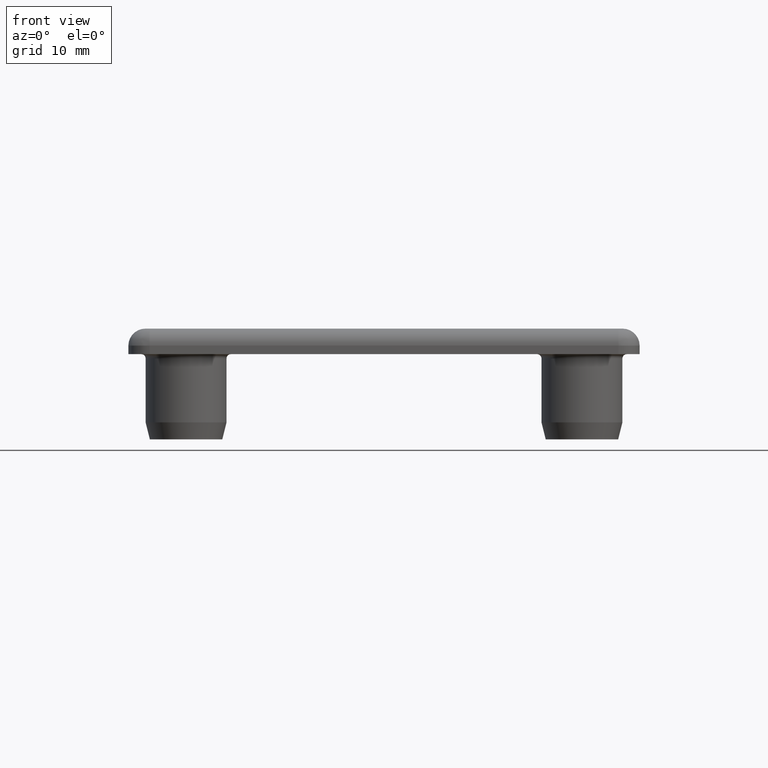
[diagram: clean part render]
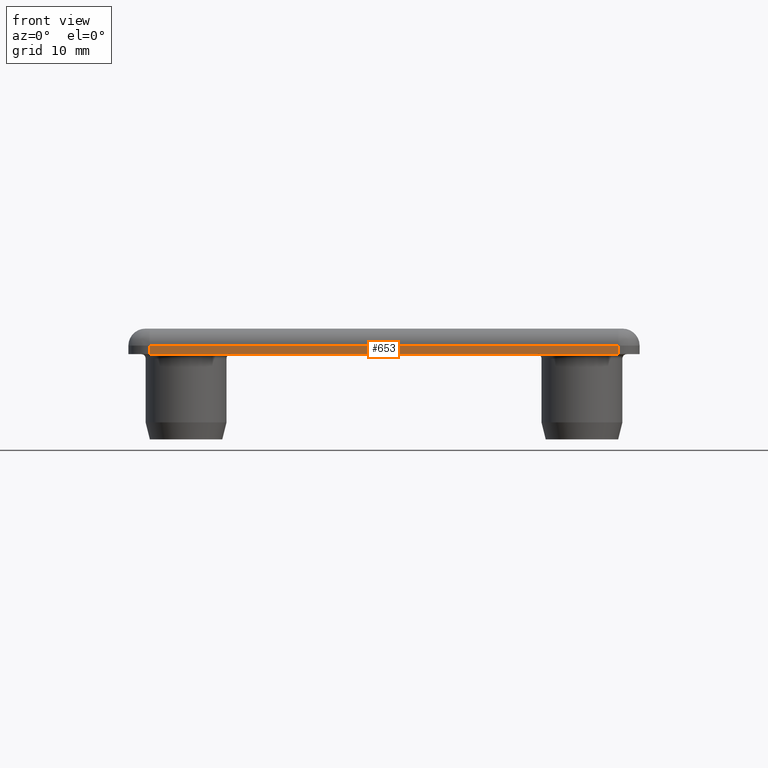
[diagram: same view with one face highlighted and labeled with its STEP entity id]
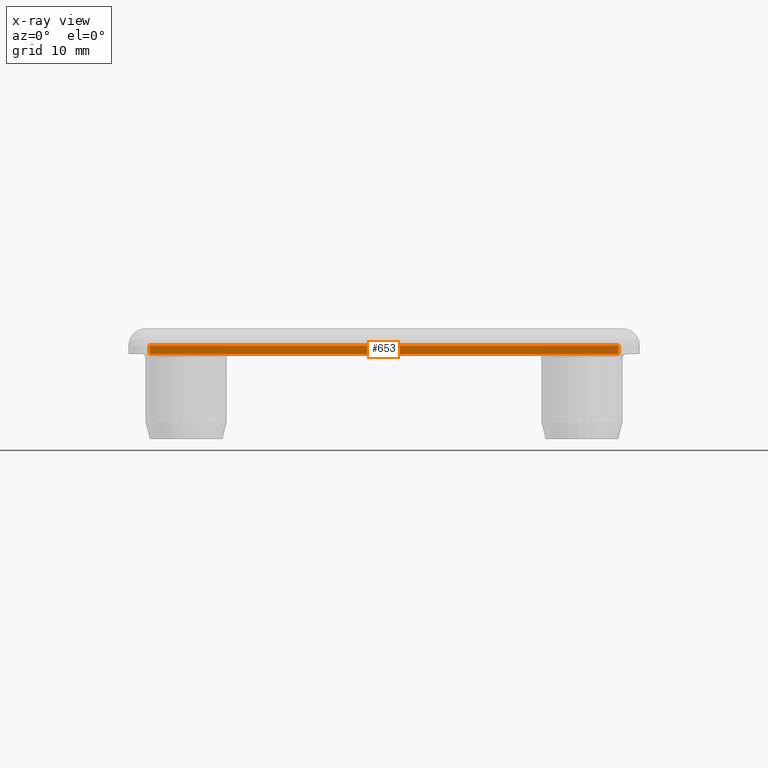
[diagram: x-ray of the same camera — body ghosted, the highlighted face saturated]
A machine part, front view. The second image highlights one B-rep face of the part: STEP entity #653.
The next image is the same camera in x-ray: the body ghosted, the highlighted face saturated — about 0% of this face is hidden behind the body in this view.
In plain terms, the highlighted planar face has unit normal (0, 1, 0).
Its self-contained STEP definition (entity closure, byte-faithful):
#20=LINE('',#1139,#40);
#27=LINE('',#1160,#47);
#28=LINE('',#1163,#48);
#29=LINE('',#1164,#49);
#40=VECTOR('',#920,55.);
#47=VECTOR('',#941,1.);
#48=VECTOR('',#944,55.);
#49=VECTOR('',#945,1.);
#61=PLANE('',#751);
#149=FACE_OUTER_BOUND('',#219,.T.);
#219=EDGE_LOOP('',(#533,#534,#535,#536));
#352=VERTEX_POINT('',#1136);
#353=VERTEX_POINT('',#1138);
#360=VERTEX_POINT('',#1158);
#361=VERTEX_POINT('',#1162);
#416=EDGE_CURVE('',#352,#353,#20,.T.);
#427=EDGE_CURVE('',#352,#360,#27,.T.);
#428=EDGE_CURVE('',#360,#361,#28,.T.);
#429=EDGE_CURVE('',#353,#361,#29,.T.);
#533=ORIENTED_EDGE('',*,*,#427,.T.);
#534=ORIENTED_EDGE('',*,*,#428,.T.);
#535=ORIENTED_EDGE('',*,*,#429,.F.);
#536=ORIENTED_EDGE('',*,*,#416,.F.);
#653=ADVANCED_FACE('',(#149),#61,.F.);
#751=AXIS2_PLACEMENT_3D('',#1161,#942,#943);
#920=DIRECTION('',(-1.,0.,0.));
#941=DIRECTION('',(0.,0.,1.));
#942=DIRECTION('center_axis',(0.,1.,0.));
#943=DIRECTION('ref_axis',(0.,0.,1.));
#944=DIRECTION('',(-1.,0.,0.));
#945=DIRECTION('',(0.,0.,1.));
#1136=CARTESIAN_POINT('',(27.5,0.,3.996803E-15));
#1138=CARTESIAN_POINT('',(-27.5,7.105427E-15,-2.664535E-15));
#1139=CARTESIAN_POINT('',(27.5,0.,3.996803E-15));
#1158=CARTESIAN_POINT('',(27.5,0.,1.));
#1160=CARTESIAN_POINT('',(27.5,0.,3.996803E-15));
#1161=CARTESIAN_POINT('Origin',(-30.25,0.,1.05));
#1162=CARTESIAN_POINT('',(-27.5,7.105427E-15,0.999999999999997));
#1163=CARTESIAN_POINT('',(27.5,0.,1.));
#1164=CARTESIAN_POINT('',(-27.5,7.105427E-15,-2.664535E-15));